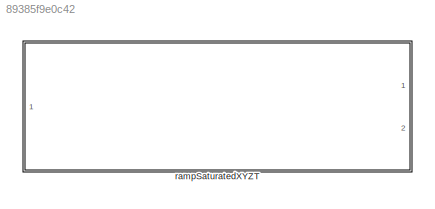
MODEL slx_89385f9e0c42
KIND library
CONFIG AbsTol = auto
CONFIG EnableMultiTasking = off
CONFIG FixedStep = auto
CONFIG MaxStep = auto
CONFIG MinStep = auto
CONFIG RelTol = 1e-3
CONFIG SampleTimeConstraint = Unconstrained
CONFIG SolverName = VariableStepAuto
CONFIG StartTime = 0.0
CONFIG StopTime = 10.0
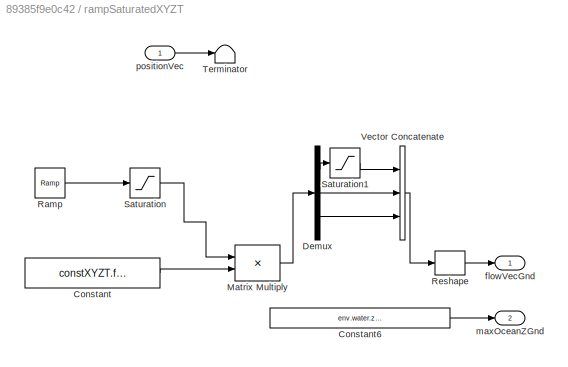
BLOCK [SubSystem] rampSaturatedXYZT
  Ports = [1, 2]
  RequestExecContextInheritance = off
BLOCK [Constant] rampSaturatedXYZT/Constant
  Value = constXYZT.flowVec.Value
BLOCK [Constant] rampSaturatedXYZT/Constant6
  Value = env.water.zGridPoints.Value(end)
BLOCK [Demux] rampSaturatedXYZT/Demux
  Outputs = 3
  Ports = [1, 3]
BLOCK [Product] rampSaturatedXYZT/Matrix Multiply
  Ports = [2, 1]
BLOCK [Reference] rampSaturatedXYZT/Ramp  REF=simulink/Sources/Ramp
  Ports = [0, 1]
  SourceBlock = simulink/Sources/Ramp
  SourceProductBaseCode = SL
  SourceType = Ramp
BLOCK [Reshape] rampSaturatedXYZT/Reshape
  OutputDimensionality = Column vector (2-D)
  Ports = [1, 1]
BLOCK [Saturate] rampSaturatedXYZT/Saturation
  LowerLimit = 0
  UpperLimit = 1
BLOCK [Saturate] rampSaturatedXYZT/Saturation1
  LowerLimit = flowSpeedOpenLoop
  UpperLimit = inf
BLOCK [Terminator] rampSaturatedXYZT/Terminator
BLOCK [Concatenate] rampSaturatedXYZT/Vector Concatenate
  NumInputs = 3
  Ports = [3, 1]
BLOCK [Outport] rampSaturatedXYZT/flowVecGnd
  VectorParamsAs1DForOutWhenUnconnected = off
BLOCK [Outport] rampSaturatedXYZT/maxOceanZGnd
  Port = 2
  VectorParamsAs1DForOutWhenUnconnected = off
BLOCK [Inport] rampSaturatedXYZT/positionVec
LINE rampSaturatedXYZT/Constant6:1 -> rampSaturatedXYZT/maxOceanZGnd:1
LINE rampSaturatedXYZT/Constant:1 -> rampSaturatedXYZT/Matrix Multiply:2
LINE rampSaturatedXYZT/Demux:1 -> rampSaturatedXYZT/Saturation1:1
LINE rampSaturatedXYZT/Demux:2 -> rampSaturatedXYZT/Vector Concatenate:2
LINE rampSaturatedXYZT/Demux:3 -> rampSaturatedXYZT/Vector Concatenate:3
LINE rampSaturatedXYZT/Matrix Multiply:1 -> rampSaturatedXYZT/Demux:1
LINE rampSaturatedXYZT/Ramp:1 -> rampSaturatedXYZT/Saturation:1
LINE rampSaturatedXYZT/Reshape:1 -> rampSaturatedXYZT/flowVecGnd:1
LINE rampSaturatedXYZT/Saturation1:1 -> rampSaturatedXYZT/Vector Concatenate:1
LINE rampSaturatedXYZT/Saturation:1 -> rampSaturatedXYZT/Matrix Multiply:1
LINE rampSaturatedXYZT/Vector Concatenate:1 -> rampSaturatedXYZT/Reshape:1
LINE rampSaturatedXYZT/positionVec:1 -> rampSaturatedXYZT/Terminator:1
